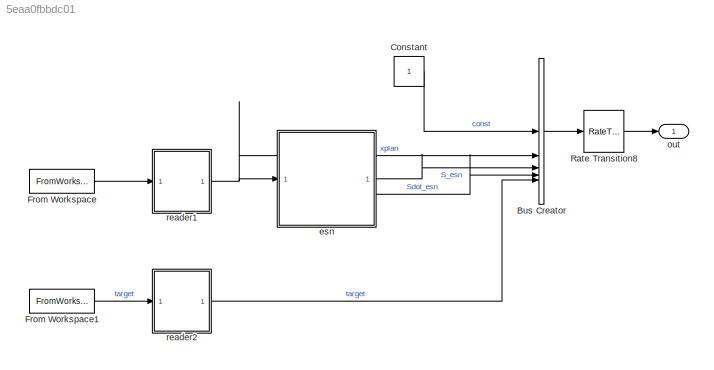
MODEL slx_5eaa0fbbdc01
KIND model
CONFIG AbsTol = auto
CONFIG EnableMultiTasking = off
CONFIG FixedStep = auto
CONFIG MaxStep = auto
CONFIG MinStep = auto
CONFIG RelTol = 1e-3
CONFIG SampleTimeConstraint = Unconstrained
CONFIG SolverName = VariableStepAuto
CONFIG StartTime = 0.0
CONFIG StopTime = stoptime
BLOCK [BusCreator] Bus Creator
  DisplayOption = bar
  InheritFromInputs = on
  Inputs = 5
BLOCK [Constant] Constant
BLOCK [FromWorkspace] From Workspace
  Interpolate = off
  OutDataTypeStr = Bus: SinusoidBus
  OutputAfterFinalValue = Holding final value
  VariableName = busin
BLOCK [FromWorkspace] From Workspace1
  Interpolate = off
  OutDataTypeStr = Bus: SinusoidBustar
  OutputAfterFinalValue = Holding final value
  VariableName = busintar
BLOCK [RateTransition] Rate Transition8
  OutPortSampleTime = esn.timestep
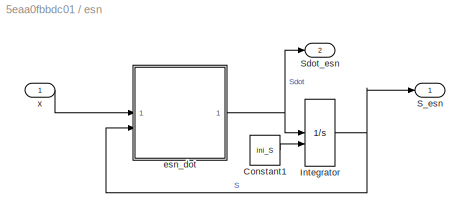
BLOCK [SubSystem] esn
BLOCK [Constant] esn/Constant1
  Value = ini_S
  VectorParams1D = off
BLOCK [Integrator] esn/Integrator
  InitialConditionSource = external
BLOCK [Outport] esn/S_esn
BLOCK [Outport] esn/Sdot_esn
  Port = 2
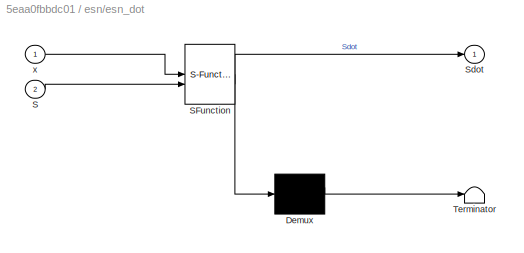
BLOCK [SubSystem] esn/esn_dot
  ErrorFcn = Stateflow.Translate.translate
  LibrarySourceBlock = simulink/User-Defined\nFunctions/MATLAB Function
  PermitHierarchicalResolution = ExplicitOnly
  SFBlockType = MATLAB Function
  TreatAsAtomicUnit = on
BLOCK [Demux] esn/esn_dot/ Demux 
  Outputs = 1
BLOCK [S-Function] esn/esn_dot/ SFunction 
  EnableBusSupport = on
  FunctionName = sf_sfun
  Parameters = Nr,Wb,Win,Wr,nodenuminput,sizeinput,tau
  PortCounts = [2 2]
  SFcnIsStateOwnerBlock = off
  SFunctionDeploymentMode = off
  Tag = Stateflow S-Function 2
BLOCK [Terminator] esn/esn_dot/ Terminator 
BLOCK [Inport] esn/esn_dot/S
  Port = 2
BLOCK [Outport] esn/esn_dot/Sdot
BLOCK [Inport] esn/esn_dot/x
BLOCK [Inport] esn/x
BLOCK [Outport] out
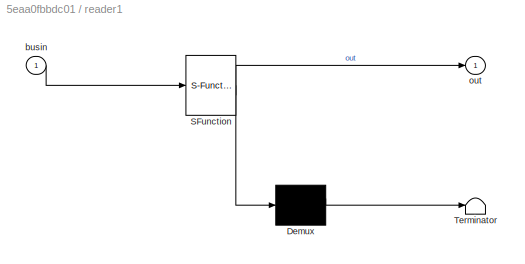
BLOCK [SubSystem] reader1
  ErrorFcn = Stateflow.Translate.translate
  LibrarySourceBlock = simulink/User-Defined\nFunctions/MATLAB Function
  PermitHierarchicalResolution = ExplicitOnly
  SFBlockType = MATLAB Function
  TreatAsAtomicUnit = on
BLOCK [Demux] reader1/ Demux 
  Outputs = 1
BLOCK [S-Function] reader1/ SFunction 
  EnableBusSupport = on
  FunctionName = sf_sfun
  PortCounts = [1 2]
  SFcnIsStateOwnerBlock = off
  SFunctionDeploymentMode = off
  Tag = Stateflow S-Function 3
BLOCK [Terminator] reader1/ Terminator 
BLOCK [Inport] reader1/busin
BLOCK [Outport] reader1/out
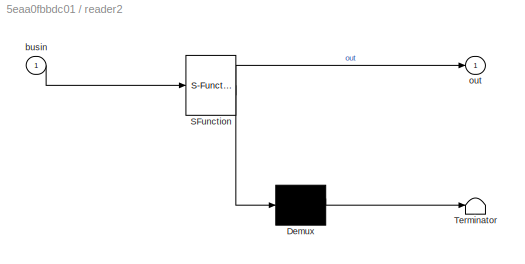
BLOCK [SubSystem] reader2
  ErrorFcn = Stateflow.Translate.translate
  LibrarySourceBlock = simulink/User-Defined\nFunctions/MATLAB Function
  PermitHierarchicalResolution = ExplicitOnly
  SFBlockType = MATLAB Function
  TreatAsAtomicUnit = on
BLOCK [Demux] reader2/ Demux 
  Outputs = 1
BLOCK [S-Function] reader2/ SFunction 
  EnableBusSupport = on
  FunctionName = sf_sfun
  PortCounts = [1 2]
  SFcnIsStateOwnerBlock = off
  SFunctionDeploymentMode = off
  Tag = Stateflow S-Function 1
BLOCK [Terminator] reader2/ Terminator 
BLOCK [Inport] reader2/busin
BLOCK [Outport] reader2/out
LINE Bus Creator:1 -> Rate Transition8:1
LINE Constant:1 -> Bus Creator:1
LINE From Workspace1:1 -> reader2:1
LINE From Workspace:1 -> reader1:1
LINE Rate Transition8:1 -> out:1
LINE esn/Constant1:1 -> esn/Integrator:2
NET esn/Integrator:1 -> esn/S_esn:1, esn/esn_dot:2
NET esn/esn_dot:1 -> esn/Integrator:1, esn/Sdot_esn:1
LINE esn/x:1 -> esn/esn_dot:1
LINE esn:1 -> Bus Creator:3
LINE esn:2 -> Bus Creator:4
NET reader1:1 -> Bus Creator:2, esn:1
LINE reader2:1 -> Bus Creator:5
note: NET lines group one-source signal fan-out (src -> all destinations, sorted); 1:1 wires keep LINE
CHART reader2 states=1 transitions=1
  STATE_LABEL 'eML_blk_kernel()'
  STATE_LABEL 'SCRIPT:\nfunction out = fcn(busin)\n\nbuscell = struct2cell(busin);\n\nout = buscell{1}(1);\n\nend'
CHART esn/esn_dot states=1 transitions=1
  STATE_LABEL 'eML_blk_kernel()'
  STATE_LABEL 'SCRIPT:\nfunction Sdot = fcn(x, S, Nr, sizeinput, nodenuminput, Win, Wr, Wb, tau)\n\nu = zeros(Nr, 1);\nfor j = 1:sizeinput\n    u(j:(j+nodenuminput-1)) = x(j,1);\nend\n\nSdot = (-S + tanh(Win.*u + Wr*S + Wb))/tau;\n'
CHART reader1 states=1 transitions=1
  STATE_LABEL 'eML_blk_kernel()'
  STATE_LABEL 'SCRIPT:\nfunction out = fcn(busin)\n\nbuscell = struct2cell(busin);\n\nout = buscell{1}(1);\n\nend'
CHART  states=0 transitions=0
CHART  states=0 transitions=0
CHART  states=0 transitions=0
